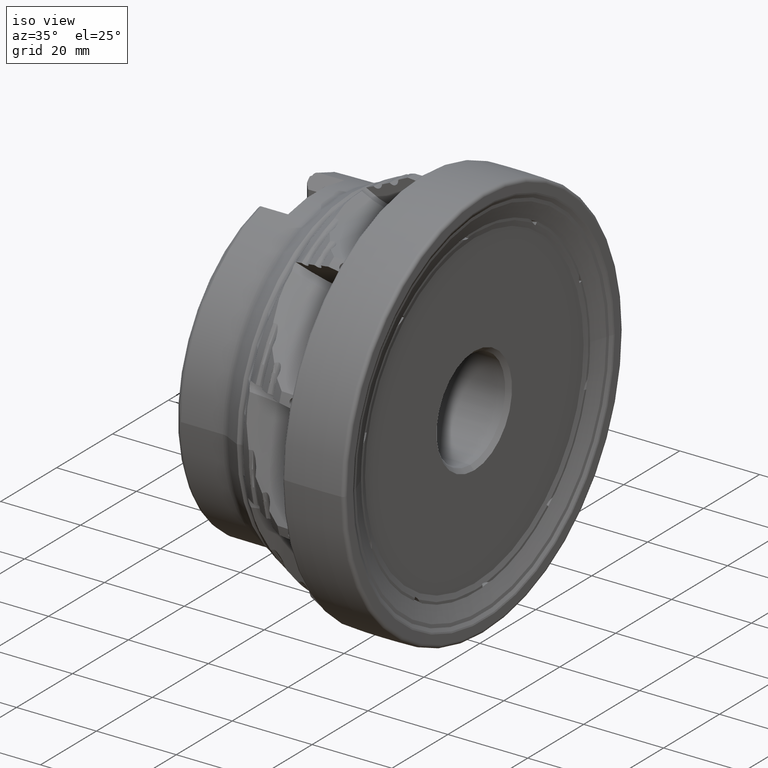
[diagram: clean part render]
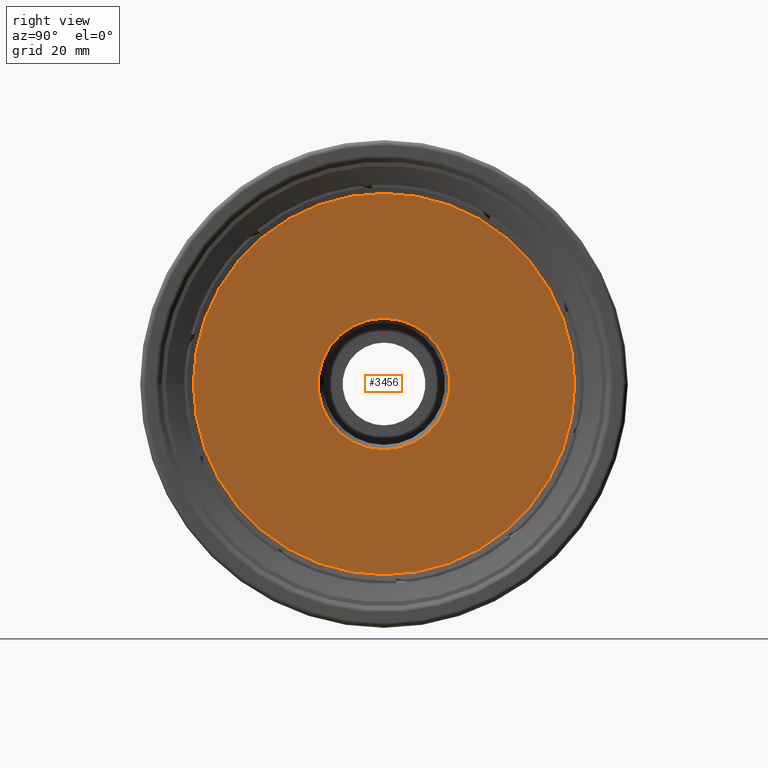
[diagram: tour spotlight — one face highlighted and labeled with its STEP entity id]
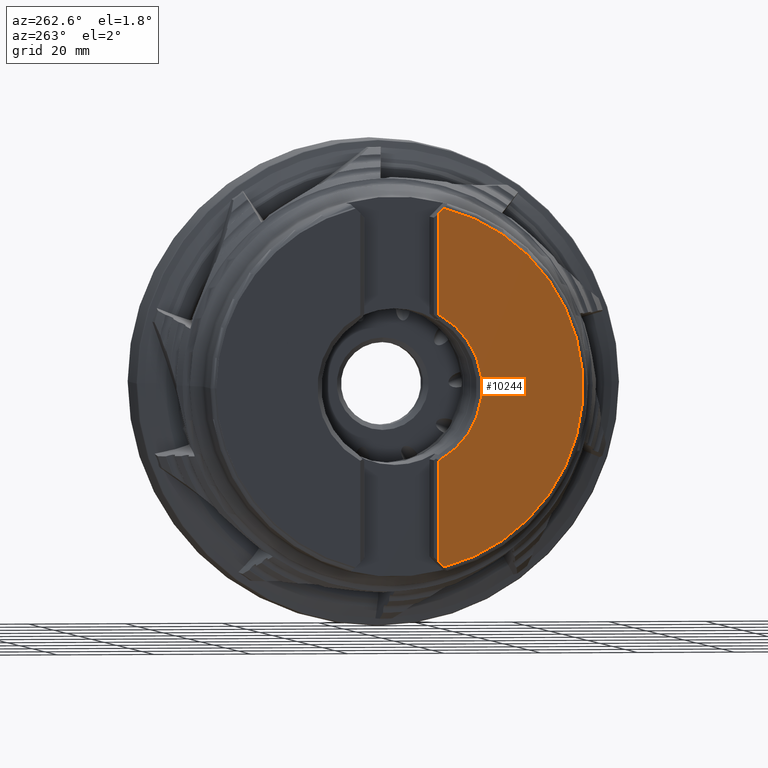
[diagram: tour spotlight — one face highlighted and labeled with its STEP entity id]
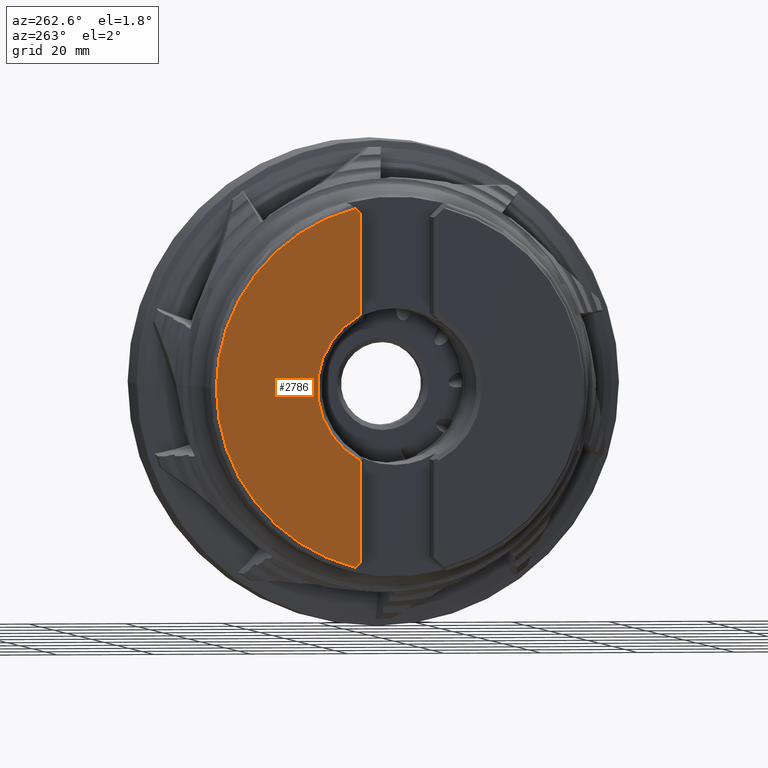
[diagram: tour spotlight — one face highlighted and labeled with its STEP entity id]
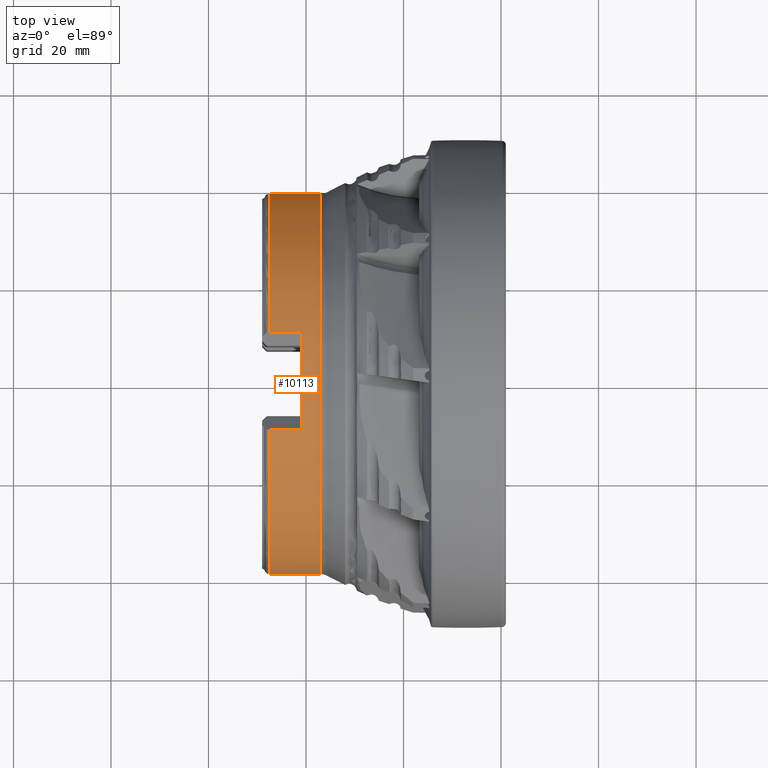
[diagram: tour spotlight — one face highlighted and labeled with its STEP entity id]
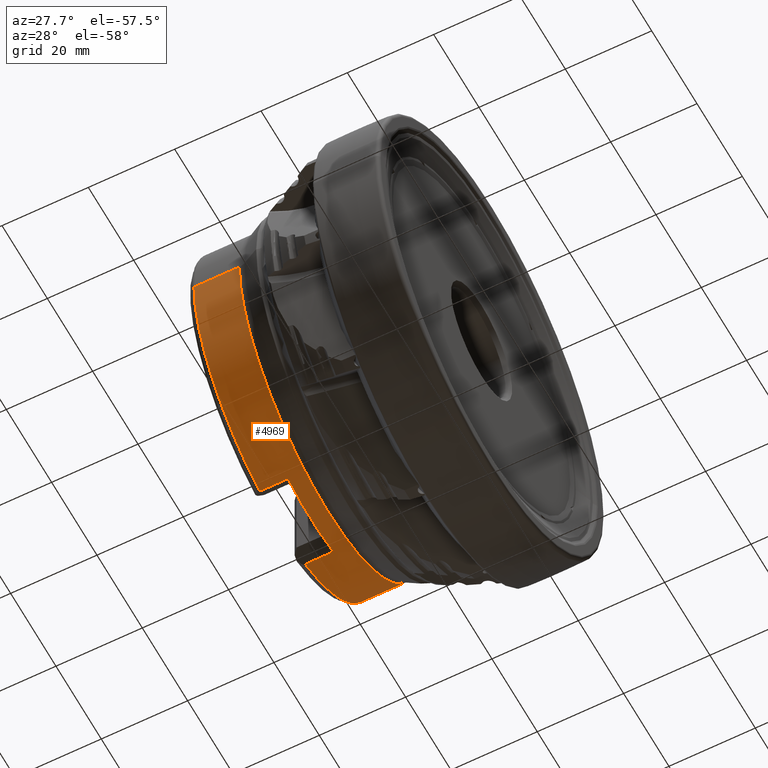
[diagram: tour spotlight — one face highlighted and labeled with its STEP entity id]
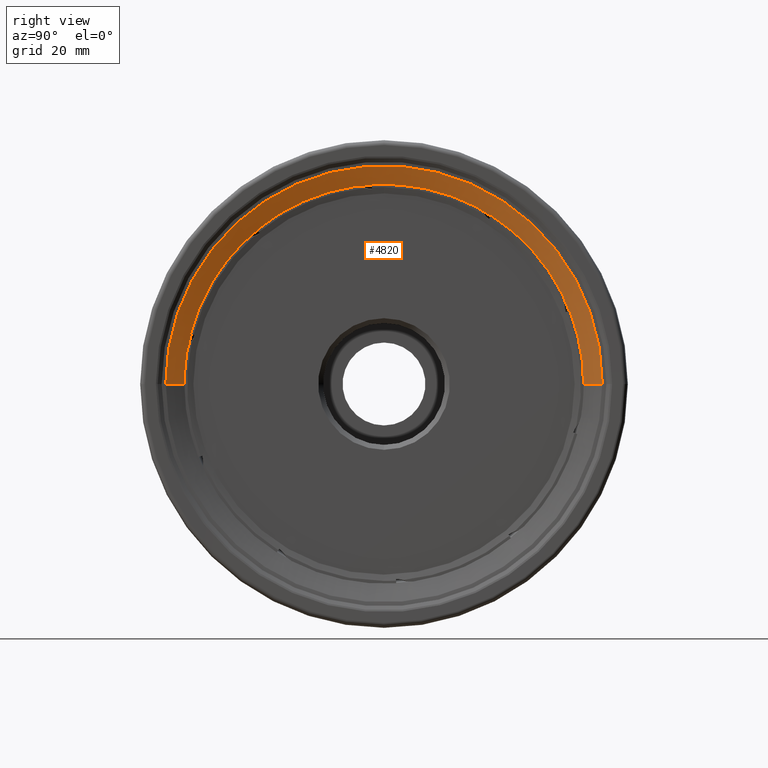
[diagram: tour spotlight — one face highlighted and labeled with its STEP entity id]
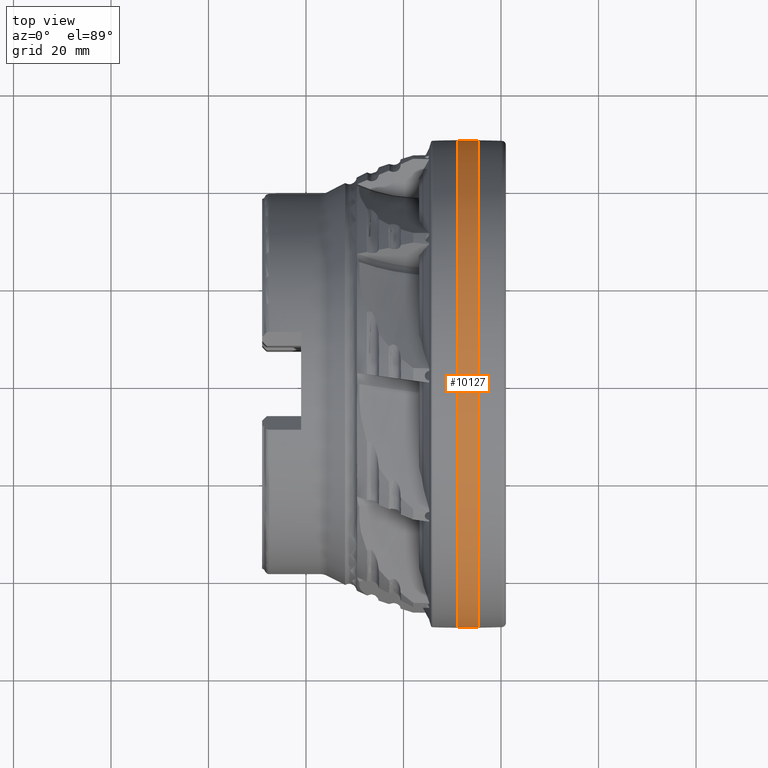
[diagram: tour spotlight — one face highlighted and labeled with its STEP entity id]
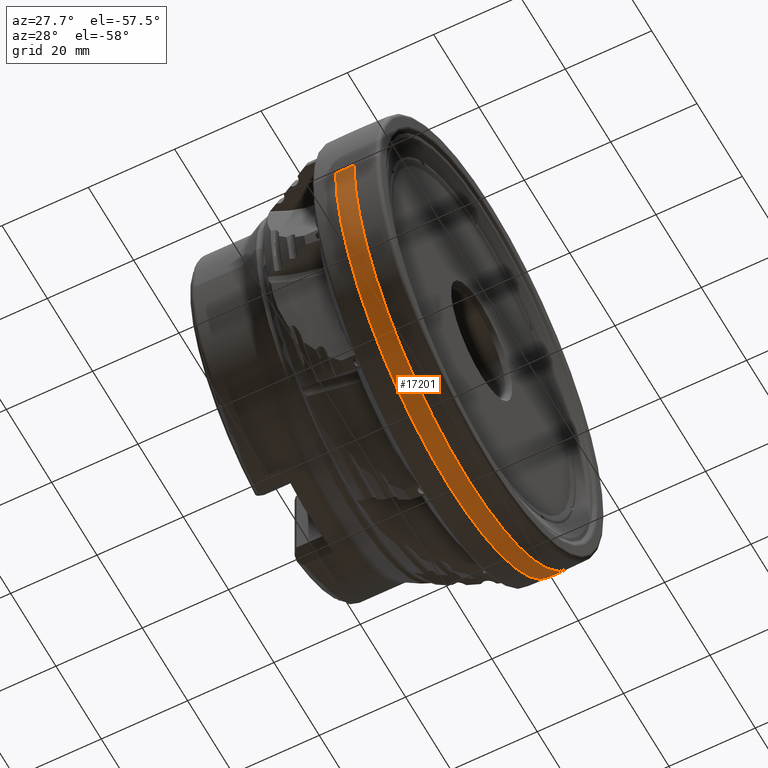
[diagram: tour spotlight — one face highlighted and labeled with its STEP entity id]
A machine part: a face-by-face anatomy tour. The part has 518 B-rep faces; the first image is the clean iso view, then the 8 largest visible faces are spotlighted one at a time (largest first), each with its STEP entity span.

Face 1 — right view, entity #3456. In plain terms, the highlighted planar face has unit normal (-1, 0, 0).
Definition (entity closure, byte-faithful):
#394 = CARTESIAN_POINT ( 'NONE',  ( -1.400000000000000799, 0.0000000000000000000, 0.0000000000000000000 ) ) ;
#1656 = CIRCLE ( 'NONE', #5580, 39.10000000000000142 ) ;
#1980 = ORIENTED_EDGE ( 'NONE', *, *, #22034, .T. ) ;
#2219 = FACE_OUTER_BOUND ( 'NONE', #8786, .T. ) ;
#2399 = CARTESIAN_POINT ( 'NONE',  ( -1.399999999999997025, 0.0000000000000000000, -13.50000000000000533 ) ) ;
#3207 = DIRECTION ( 'NONE',  ( -1.000000000000000000, 0.0000000000000000000, 0.0000000000000000000 ) ) ;
#3228 = AXIS2_PLACEMENT_3D ( 'NONE', #11441, #3207, #6234 ) ;
#3413 = CARTESIAN_POINT ( 'NONE',  ( -1.400000000000000799, 0.0000000000000000000, 0.0000000000000000000 ) ) ;
#3456 = ADVANCED_FACE ( 'NONE', ( #16144, #2219 ), #15908, .F. ) ;
#3493 = VERTEX_POINT ( 'NONE', #11658 ) ;
#4003 = VERTEX_POINT ( 'NONE', #2399 ) ;
#4024 = EDGE_CURVE ( 'Kante54', #18223, #4003, #18263, .T. ) ;
#5580 = AXIS2_PLACEMENT_3D ( 'NONE', #394, #17151, #17371 ) ;
#6175 = CARTESIAN_POINT ( 'NONE',  ( -1.399999999999997025, 1.653273178848927458E-15, 13.50000000000000533 ) ) ;
#6234 = DIRECTION ( 'NONE',  ( 0.0000000000000000000, 0.0000000000000000000, 1.000000000000000000 ) ) ;
#6599 = EDGE_LOOP ( 'NONE', ( #14141, #14251 ) ) ;
#6773 = DIRECTION ( 'NONE',  ( 0.0000000000000000000, 0.0000000000000000000, -1.000000000000000000 ) ) ;
#7210 = DIRECTION ( 'NONE',  ( 1.000000000000000000, -0.0000000000000000000, -0.0000000000000000000 ) ) ;
#8786 = EDGE_LOOP ( 'NONE', ( #21774, #1980 ) ) ;
#10448 = CARTESIAN_POINT ( 'NONE',  ( -1.400000000000000799, 4.867436843024822299E-15, 39.10000000000000142 ) ) ;
#11441 = CARTESIAN_POINT ( 'NONE',  ( -1.399999999999998801, 39.10000000000000142, 0.0000000000000000000 ) ) ;
#11658 = CARTESIAN_POINT ( 'NONE',  ( -1.400000000000000799, 0.0000000000000000000, -39.10000000000000142 ) ) ;
#11867 = DIRECTION ( 'NONE',  ( 1.000000000000000000, -0.0000000000000000000, -0.0000000000000000000 ) ) ;
#13424 = CIRCLE ( 'NONE', #15241, 13.50000000000000533 ) ;
#13508 = EDGE_CURVE ( 'Kante54', #4003, #18223, #13424, .T. ) ;
#13568 = DIRECTION ( 'NONE',  ( 0.0000000000000000000, 0.0000000000000000000, -1.000000000000000000 ) ) ;
#14141 = ORIENTED_EDGE ( 'NONE', *, *, #13508, .F. ) ;
#14251 = ORIENTED_EDGE ( 'NONE', *, *, #4024, .F. ) ;
#14854 = EDGE_CURVE ( 'NONE', #3493, #18504, #1656, .T. ) ;
#15241 = AXIS2_PLACEMENT_3D ( 'NONE', #21826, #16598, #13568 ) ;
#15908 = PLANE ( 'NONE',  #3228 ) ;
#16144 = FACE_BOUND ( 'NONE', #6599, .T. ) ;
#16598 = DIRECTION ( 'NONE',  ( 1.000000000000000000, -0.0000000000000000000, -0.0000000000000000000 ) ) ;
#17151 = DIRECTION ( 'NONE',  ( 1.000000000000000000, -0.0000000000000000000, -0.0000000000000000000 ) ) ;
#17371 = DIRECTION ( 'NONE',  ( 0.0000000000000000000, 0.0000000000000000000, -1.000000000000000000 ) ) ;
#17524 = AXIS2_PLACEMENT_3D ( 'NONE', #19157, #7210, #21288 ) ;
#18223 = VERTEX_POINT ( 'NONE', #6175 ) ;
#18263 = CIRCLE ( 'NONE', #17524, 13.50000000000000533 ) ;
#18504 = VERTEX_POINT ( 'NONE', #10448 ) ;
#19157 = CARTESIAN_POINT ( 'NONE',  ( -1.399999999999997025, 0.0000000000000000000, 0.0000000000000000000 ) ) ;
#19924 = CIRCLE ( 'NONE', #22077, 39.10000000000000142 ) ;
#21288 = DIRECTION ( 'NONE',  ( 0.0000000000000000000, 0.0000000000000000000, -1.000000000000000000 ) ) ;
#21774 = ORIENTED_EDGE ( 'NONE', *, *, #14854, .T. ) ;
#21826 = CARTESIAN_POINT ( 'NONE',  ( -1.399999999999997025, 0.0000000000000000000, 0.0000000000000000000 ) ) ;
#22034 = EDGE_CURVE ( 'NONE', #18504, #3493, #19924, .T. ) ;
#22077 = AXIS2_PLACEMENT_3D ( 'NONE', #3413, #11867, #6773 ) ;

Face 2 — auxiliary view, entity #10244. In plain terms, the highlighted planar face has unit normal (1, 0, -0).
Definition (entity closure, byte-faithful):
#192 = CARTESIAN_POINT ( 'NONE',  ( -48.99999999999999289, -45.00000000000000000, -51.16752213996278442 ) ) ;
#269 = CIRCLE ( 'NONE', #17905, 17.02500000000000213 ) ;
#336 = ORIENTED_EDGE ( 'NONE', *, *, #1440, .T. ) ;
#1061 = DIRECTION ( 'NONE',  ( 0.0000000000000000000, 0.0000000000000000000, -1.000000000000000000 ) ) ;
#1173 = EDGE_CURVE ( 'NONE', #6859, #20744, #19571, .T. ) ;
#1361 = VERTEX_POINT ( 'NONE', #13976 ) ;
#1440 = EDGE_CURVE ( 'NONE', #12008, #1361, #3015, .T. ) ;
#2127 = EDGE_LOOP ( 'NONE', ( #336, #9342, #8101, #9156, #18215, #19578 ) ) ;
#2188 = LINE ( 'NONE', #7118, #17159 ) ;
#2792 = CARTESIAN_POINT ( 'NONE',  ( -48.99999999999999289, -7.200000000000008171, -34.85319172440896551 ) ) ;
#3015 = CIRCLE ( 'NONE', #12710, 37.92228756555321212 ) ;
#3128 = AXIS2_PLACEMENT_3D ( 'NONE', #192, #20807, #8963 ) ;
#3723 = VECTOR ( 'NONE', #7610, 1000.000000000000000 ) ;
#4033 = VERTEX_POINT ( 'NONE', #5842 ) ;
#4198 = VERTEX_POINT ( 'NONE', #10242 ) ;
#5337 = CARTESIAN_POINT ( 'NONE',  ( -48.99999999999999289, -8.150000000000002132, 14.94751233483351704 ) ) ;
#5842 = CARTESIAN_POINT ( 'NONE',  ( -48.99999999999999289, -8.149999999999996803, -14.94751233483351882 ) ) ;
#6859 = VERTEX_POINT ( 'NONE', #10735 ) ;
#7118 = CARTESIAN_POINT ( 'NONE',  ( -48.99999999999999289, -7.200000000000000178, 34.85319172440896551 ) ) ;
#7610 = DIRECTION ( 'NONE',  ( -9.676441861234185210E-49, 4.355219482277781794E-17, -1.000000000000000000 ) ) ;
#8101 = ORIENTED_EDGE ( 'NONE', *, *, #1173, .T. ) ;
#8628 = DIRECTION ( 'NONE',  ( 0.0000000000000000000, -4.790741430505560405E-16, -1.000000000000000000 ) ) ;
#8889 = DIRECTION ( 'NONE',  ( 0.0000000000000000000, 0.0000000000000000000, -1.000000000000000000 ) ) ;
#8963 = DIRECTION ( 'NONE',  ( -0.0000000000000000000, 0.0000000000000000000, -1.000000000000000000 ) ) ;
#9013 = EDGE_CURVE ( 'NONE', #12008, #4198, #14804, .T. ) ;
#9156 = ORIENTED_EDGE ( 'NONE', *, *, #10828, .F. ) ;
#9342 = ORIENTED_EDGE ( 'NONE', *, *, #9642, .F. ) ;
#9642 = EDGE_CURVE ( 'NONE', #6859, #1361, #2188, .T. ) ;
#9657 = DIRECTION ( 'NONE',  ( 0.0000000000000000000, 0.7071067811865513475, 0.7071067811865436870 ) ) ;
#10242 = CARTESIAN_POINT ( 'NONE',  ( -48.99999999999999289, -8.150000000000005684, -35.80319172440894704 ) ) ;
#10244 = ADVANCED_FACE ( 'NONE', ( #14359 ), #10434, .F. ) ;
#10330 = CARTESIAN_POINT ( 'NONE',  ( -48.99999999999999289, -8.150000000000005684, -34.85319172440896551 ) ) ;
#10434 = PLANE ( 'NONE',  #3128 ) ;
#10735 = CARTESIAN_POINT ( 'NONE',  ( -48.99999999999999289, -8.150000000000003908, 35.80319172440895414 ) ) ;
#10828 = EDGE_CURVE ( 'NONE', #4033, #20744, #269, .T. ) ;
#11015 = CARTESIAN_POINT ( 'NONE',  ( -48.99999999999999289, -8.150000000000003908, 34.85319172440896551 ) ) ;
#12008 = VERTEX_POINT ( 'NONE', #13649 ) ;
#12710 = AXIS2_PLACEMENT_3D ( 'NONE', #14198, #19737, #1061 ) ;
#13649 = CARTESIAN_POINT ( 'NONE',  ( -48.99999999999999289, -9.148938820703916619, -36.80213054511285975 ) ) ;
#13976 = CARTESIAN_POINT ( 'NONE',  ( -48.99999999999999289, -9.148938820703911290, 36.80213054511285264 ) ) ;
#14198 = CARTESIAN_POINT ( 'NONE',  ( -48.99999999999999289, -6.938893903907228378E-15, 0.0000000000000000000 ) ) ;
#14359 = FACE_OUTER_BOUND ( 'NONE', #2127, .T. ) ;
#14804 = LINE ( 'NONE', #2792, #19684 ) ;
#16628 = VECTOR ( 'NONE', #8628, 1000.000000000000000 ) ;
#17159 = VECTOR ( 'NONE', #19070, 1000.000000000000000 ) ;
#17638 = LINE ( 'NONE', #10330, #16628 ) ;
#17661 = CARTESIAN_POINT ( 'NONE',  ( -48.99999999999999289, 0.0000000000000000000, 0.0000000000000000000 ) ) ;
#17781 = DIRECTION ( 'NONE',  ( -1.000000000000000000, -0.0000000000000000000, 0.0000000000000000000 ) ) ;
#17905 = AXIS2_PLACEMENT_3D ( 'NONE', #17661, #17781, #8889 ) ;
#18215 = ORIENTED_EDGE ( 'NONE', *, *, #21870, .T. ) ;
#19070 = DIRECTION ( 'NONE',  ( 0.0000000000000000000, -0.7071067811865513475, 0.7071067811865436870 ) ) ;
#19571 = LINE ( 'NONE', #11015, #3723 ) ;
#19578 = ORIENTED_EDGE ( 'NONE', *, *, #9013, .F. ) ;
#19684 = VECTOR ( 'NONE', #9657, 1000.000000000000000 ) ;
#19737 = DIRECTION ( 'NONE',  ( -1.000000000000000000, -0.0000000000000000000, 0.0000000000000000000 ) ) ;
#20744 = VERTEX_POINT ( 'NONE', #5337 ) ;
#20807 = DIRECTION ( 'NONE',  ( 1.000000000000000000, 0.0000000000000000000, -0.0000000000000000000 ) ) ;
#21870 = EDGE_CURVE ( 'NONE', #4033, #4198, #17638, .T. ) ;

Face 3 — auxiliary view, entity #2786. In plain terms, the highlighted planar face has unit normal (1, 0, -0).
Definition (entity closure, byte-faithful):
#277 = PLANE ( 'NONE',  #11735 ) ;
#587 = VERTEX_POINT ( 'NONE', #3065 ) ;
#708 = EDGE_LOOP ( 'NONE', ( #10038, #20777, #16821, #20495, #20175, #21251, #13774 ) ) ;
#1239 = CIRCLE ( 'NONE', #10943, 37.92228756555321212 ) ;
#2364 = LINE ( 'NONE', #9203, #3878 ) ;
#2729 = AXIS2_PLACEMENT_3D ( 'NONE', #15987, #17461, #21070 ) ;
#2786 = ADVANCED_FACE ( 'NONE', ( #6676 ), #277, .F. ) ;
#2915 = VERTEX_POINT ( 'NONE', #12946 ) ;
#2959 = VERTEX_POINT ( 'NONE', #6854 ) ;
#3009 = CARTESIAN_POINT ( 'NONE',  ( -48.99999999999999289, 8.150000000000046541, 15.04787092496624012 ) ) ;
#3065 = CARTESIAN_POINT ( 'NONE',  ( -48.99999999999999289, 9.148938818949400087, 36.80213054556050878 ) ) ;
#3324 = DIRECTION ( 'NONE',  ( 0.0000000000000000000, -2.189718981695497263E-16, 1.000000000000000000 ) ) ;
#3395 = CARTESIAN_POINT ( 'NONE',  ( -48.99999999999999289, 8.150000000000046541, 14.94751233483349218 ) ) ;
#3870 = VERTEX_POINT ( 'NONE', #3395 ) ;
#3878 = VECTOR ( 'NONE', #9332, 999.9999999999998863 ) ;
#4594 = DIRECTION ( 'NONE',  ( -1.000000000000000000, -0.0000000000000000000, 0.0000000000000000000 ) ) ;
#5007 = LINE ( 'NONE', #18743, #8661 ) ;
#5232 = DIRECTION ( 'NONE',  ( 1.548230697797463313E-47, 6.569156945086491295E-16, 1.000000000000000000 ) ) ;
#6676 = FACE_OUTER_BOUND ( 'NONE', #708, .T. ) ;
#6854 = CARTESIAN_POINT ( 'NONE',  ( -48.99999999999999289, 9.148938818940189677, -36.80213054555131436 ) ) ;
#8299 = CARTESIAN_POINT ( 'NONE',  ( -48.99999999999999289, 0.0000000000000000000, 0.0000000000000000000 ) ) ;
#8411 = DIRECTION ( 'NONE',  ( 0.0000000000000000000, -8.881784197001250351E-16, -1.000000000000000000 ) ) ;
#8576 = CARTESIAN_POINT ( 'NONE',  ( -48.99999999999999289, 11.34680827415612292, 39.00000000000000711 ) ) ;
#8661 = VECTOR ( 'NONE', #5232, 1000.000000000000000 ) ;
#9203 = CARTESIAN_POINT ( 'NONE',  ( -48.99999999999999289, 11.34680827415611226, -39.00000000000000711 ) ) ;
#9332 = DIRECTION ( 'NONE',  ( 0.0000000000000000000, 0.7071067813099647381, -0.7071067810631304074 ) ) ;
#9444 = CARTESIAN_POINT ( 'NONE',  ( -48.99999999999999289, -6.938893903907228378E-15, 0.0000000000000000000 ) ) ;
#9651 = VECTOR ( 'NONE', #3324, 1000.000000000000000 ) ;
#10038 = ORIENTED_EDGE ( 'NONE', *, *, #17907, .T. ) ;
#10169 = DIRECTION ( 'NONE',  ( -0.0000000000000000000, 0.0000000000000000000, -1.000000000000000000 ) ) ;
#10273 = DIRECTION ( 'NONE',  ( 0.0000000000000000000, -0.7071067813099648491, -0.7071067810631301853 ) ) ;
#10943 = AXIS2_PLACEMENT_3D ( 'NONE', #9444, #21500, #16503 ) ;
#11735 = AXIS2_PLACEMENT_3D ( 'NONE', #17252, #13735, #10169 ) ;
#12946 = CARTESIAN_POINT ( 'NONE',  ( -48.99999999999999289, 8.150000000000032330, -35.80319172695985941 ) ) ;
#13337 = EDGE_CURVE ( 'NONE', #587, #17763, #1239, .T. ) ;
#13735 = DIRECTION ( 'NONE',  ( 1.000000000000000000, 0.0000000000000000000, -0.0000000000000000000 ) ) ;
#13774 = ORIENTED_EDGE ( 'NONE', *, *, #16497, .F. ) ;
#13958 = LINE ( 'NONE', #8576, #19251 ) ;
#14208 = EDGE_CURVE ( 'NONE', #587, #15487, #13958, .T. ) ;
#14319 = EDGE_CURVE ( 'NONE', #17763, #2959, #16711, .T. ) ;
#14488 = CIRCLE ( 'NONE', #20247, 17.02500000000000213 ) ;
#15487 = VERTEX_POINT ( 'NONE', #15920 ) ;
#15920 = CARTESIAN_POINT ( 'NONE',  ( -48.99999999999999289, 8.150000000000042988, 35.80319172695985941 ) ) ;
#15987 = CARTESIAN_POINT ( 'NONE',  ( -48.99999999999999289, -6.938893903907228378E-15, 0.0000000000000000000 ) ) ;
#16497 = EDGE_CURVE ( 'NONE', #2915, #2959, #2364, .T. ) ;
#16503 = DIRECTION ( 'NONE',  ( 0.0000000000000000000, 0.0000000000000000000, -1.000000000000000000 ) ) ;
#16640 = EDGE_CURVE ( 'NONE', #3870, #15487, #18753, .T. ) ;
#16711 = CIRCLE ( 'NONE', #2729, 37.92228756555321212 ) ;
#16821 = ORIENTED_EDGE ( 'NONE', *, *, #16640, .T. ) ;
#17252 = CARTESIAN_POINT ( 'NONE',  ( -48.99999999999999289, -45.00000000000000000, -51.16752213996278442 ) ) ;
#17461 = DIRECTION ( 'NONE',  ( -1.000000000000000000, -0.0000000000000000000, 0.0000000000000000000 ) ) ;
#17763 = VERTEX_POINT ( 'NONE', #21693 ) ;
#17907 = EDGE_CURVE ( 'NONE', #2915, #19906, #5007, .T. ) ;
#18743 = CARTESIAN_POINT ( 'NONE',  ( -48.99999999999999289, 8.150000000000046541, -15.04787092496624012 ) ) ;
#18753 = LINE ( 'NONE', #3009, #9651 ) ;
#19251 = VECTOR ( 'NONE', #10273, 1000.000000000000000 ) ;
#19427 = EDGE_CURVE ( 'NONE', #3870, #19906, #14488, .T. ) ;
#19906 = VERTEX_POINT ( 'NONE', #21060 ) ;
#20175 = ORIENTED_EDGE ( 'NONE', *, *, #13337, .T. ) ;
#20247 = AXIS2_PLACEMENT_3D ( 'NONE', #8299, #4594, #8411 ) ;
#20495 = ORIENTED_EDGE ( 'NONE', *, *, #14208, .F. ) ;
#20777 = ORIENTED_EDGE ( 'NONE', *, *, #19427, .F. ) ;
#21060 = CARTESIAN_POINT ( 'NONE',  ( -48.99999999999999289, 8.150000000000046541, -14.94751233483348862 ) ) ;
#21070 = DIRECTION ( 'NONE',  ( 0.0000000000000000000, 1.776356839400250070E-15, -1.000000000000000000 ) ) ;
#21251 = ORIENTED_EDGE ( 'NONE', *, *, #14319, .T. ) ;
#21500 = DIRECTION ( 'NONE',  ( -1.000000000000000000, -0.0000000000000000000, 0.0000000000000000000 ) ) ;
#21693 = CARTESIAN_POINT ( 'NONE',  ( -48.99999999999999289, 37.92228756555320501, 0.0000000000000000000 ) ) ;

Face 4 — top view, entity #10113. In plain terms, the highlighted cylindrical surface (partial cylindrical patch) has radius 39 mm, axis along (1, 0, -0).
Definition (entity closure, byte-faithful):
#74 = CARTESIAN_POINT ( 'NONE',  ( 0.0000000000000000000, 0.0000000000000000000, 0.0000000000000000000 ) ) ;
#202 = CARTESIAN_POINT ( 'NONE',  ( -47.55000000000000426, 10.03394157505487883, 37.68713330135705775 ) ) ;
#625 = CIRCLE ( 'NONE', #17883, 39.00000000003763034 ) ;
#1144 = CARTESIAN_POINT ( 'NONE',  ( 4.776122516679286403E-15, -39.00000000003763034, 4.776122516679286403E-15 ) ) ;
#1190 = DIRECTION ( 'NONE',  ( -1.000000000000000000, -0.0000000000000000000, 0.0000000000000000000 ) ) ;
#1228 = VECTOR ( 'NONE', #21745, 1000.000000000000000 ) ;
#1307 = CIRCLE ( 'NONE', #16359, 39.00000000007526069 ) ;
#1452 = ORIENTED_EDGE ( 'NONE', *, *, #1487, .F. ) ;
#1487 = EDGE_CURVE ( 'NONE', #11971, #12409, #15566, .T. ) ;
#1556 = DIRECTION ( 'NONE',  ( -1.224646799147353454E-16, 1.000000000000000000, 0.0000000000000000000 ) ) ;
#1601 = EDGE_CURVE ( 'NONE', #14709, #11971, #20064, .T. ) ;
#1902 = ORIENTED_EDGE ( 'NONE', *, *, #10367, .F. ) ;
#2631 = CARTESIAN_POINT ( 'NONE',  ( -37.04999999999999005, -4.537316390840942288E-15, 0.0000000000000000000 ) ) ;
#2889 = LINE ( 'NONE', #9310, #22182 ) ;
#3751 = DIRECTION ( 'NONE',  ( 1.000000000000000000, 1.224646799147353207E-16, -0.0000000000000000000 ) ) ;
#3828 = VECTOR ( 'NONE', #9748, 1000.000000000000000 ) ;
#4323 = DIRECTION ( 'NONE',  ( 1.000000000000000000, 1.224646799147353207E-16, -0.0000000000000000000 ) ) ;
#4646 = CARTESIAN_POINT ( 'NONE',  ( -47.55000000000000426, -5.823195529945664499E-15, 0.0000000000000000000 ) ) ;
#5040 = ORIENTED_EDGE ( 'NONE', *, *, #10346, .F. ) ;
#5094 = CARTESIAN_POINT ( 'NONE',  ( -47.55000000000001137, 39.00000000007525358, 0.0000000000000000000 ) ) ;
#5127 = DIRECTION ( 'NONE',  ( 1.000000000000000000, 1.224646799147353207E-16, -0.0000000000000000000 ) ) ;
#5862 = AXIS2_PLACEMENT_3D ( 'NONE', #2631, #14312, #21427 ) ;
#6651 = CARTESIAN_POINT ( 'NONE',  ( -4.776122516679286403E-15, 39.00000000003763034, 0.0000000000000000000 ) ) ;
#6941 = CIRCLE ( 'NONE', #14140, 39.00000000007526069 ) ;
#8042 = DIRECTION ( 'NONE',  ( 0.0000000000000000000, 2.664535259100375697E-15, -1.000000000000000000 ) ) ;
#8090 = VERTEX_POINT ( 'NONE', #11390 ) ;
#8486 = CARTESIAN_POINT ( 'NONE',  ( -37.04999999999999716, 38.99999999999999289, 0.0000000000000000000 ) ) ;
#8584 = EDGE_CURVE ( 'NONE', #10106, #8827, #20534, .T. ) ;
#8827 = VERTEX_POINT ( 'NONE', #202 ) ;
#9136 = VECTOR ( 'NONE', #9722, 1000.000000000000000 ) ;
#9310 = CARTESIAN_POINT ( 'NONE',  ( 2.922073080026869793E-15, -10.03394157651929319, 37.68713330092821678 ) ) ;
#9722 = DIRECTION ( 'NONE',  ( 1.000000000000000000, 1.224646799147353207E-16, -0.0000000000000000000 ) ) ;
#9748 = DIRECTION ( 'NONE',  ( -1.000000000000000000, -1.224646799147353207E-16, 0.0000000000000000000 ) ) ;
#10106 = VERTEX_POINT ( 'NONE', #21940 ) ;
#10113 = ADVANCED_FACE ( 'NONE', ( #19003 ), #17064, .T. ) ;
#10233 = ORIENTED_EDGE ( 'NONE', *, *, #11520, .T. ) ;
#10346 = EDGE_CURVE ( 'NONE', #8090, #19928, #2889, .T. ) ;
#10367 = EDGE_CURVE ( 'NONE', #19928, #10106, #625, .T. ) ;
#10369 = CARTESIAN_POINT ( 'NONE',  ( -40.99999999999998579, -10.03394157651928786, 37.68713330092821678 ) ) ;
#11066 = LINE ( 'NONE', #1144, #1228 ) ;
#11390 = CARTESIAN_POINT ( 'NONE',  ( -47.55000000000000426, -10.03394157655003838, 37.68713330095896907 ) ) ;
#11401 = CARTESIAN_POINT ( 'NONE',  ( -47.54999999999999716, -39.00000000007526779, 4.776122516683893351E-15 ) ) ;
#11520 = EDGE_CURVE ( 'NONE', #8090, #21102, #6941, .T. ) ;
#11971 = VERTEX_POINT ( 'NONE', #8486 ) ;
#12134 = ORIENTED_EDGE ( 'NONE', *, *, #8584, .F. ) ;
#12409 = VERTEX_POINT ( 'NONE', #17683 ) ;
#12431 = ORIENTED_EDGE ( 'NONE', *, *, #1601, .F. ) ;
#13385 = ORIENTED_EDGE ( 'NONE', *, *, #21135, .T. ) ;
#14140 = AXIS2_PLACEMENT_3D ( 'NONE', #4646, #4323, #21566 ) ;
#14206 = CARTESIAN_POINT ( 'NONE',  ( -47.55000000000000426, -5.823195529945664499E-15, 0.0000000000000000000 ) ) ;
#14312 = DIRECTION ( 'NONE',  ( 1.000000000000000000, 1.224646799147353207E-16, -0.0000000000000000000 ) ) ;
#14594 = EDGE_LOOP ( 'NONE', ( #10233, #13385, #1452, #12431, #20430, #12134, #1902, #5040 ) ) ;
#14709 = VERTEX_POINT ( 'NONE', #5094 ) ;
#14775 = EDGE_CURVE ( 'NONE', #14709, #8827, #1307, .T. ) ;
#15566 = CIRCLE ( 'NONE', #5862, 39.00000000000000000 ) ;
#15671 = AXIS2_PLACEMENT_3D ( 'NONE', #74, #5127, #1556 ) ;
#16359 = AXIS2_PLACEMENT_3D ( 'NONE', #14206, #3751, #17260 ) ;
#17064 = CYLINDRICAL_SURFACE ( 'NONE', #15671, 39.00000000003763034 ) ;
#17260 = DIRECTION ( 'NONE',  ( -1.779203565100984104E-16, 1.000000000000000000, 0.0000000000000000000 ) ) ;
#17683 = CARTESIAN_POINT ( 'NONE',  ( -37.04999999999998295, -39.00000000000000711, 4.796202013336622635E-15 ) ) ;
#17883 = AXIS2_PLACEMENT_3D ( 'NONE', #17980, #1190, #8042 ) ;
#17980 = CARTESIAN_POINT ( 'NONE',  ( -40.99999999999998579, -5.021051876504146596E-15, 0.0000000000000000000 ) ) ;
#18845 = CARTESIAN_POINT ( 'NONE',  ( -2.922073080174159196E-15, 10.03394157502412298, 37.68713330132629835 ) ) ;
#19003 = FACE_OUTER_BOUND ( 'NONE', #14594, .T. ) ;
#19874 = DIRECTION ( 'NONE',  ( 1.000000000000000000, 1.224646799147353207E-16, -0.0000000000000000000 ) ) ;
#19928 = VERTEX_POINT ( 'NONE', #10369 ) ;
#20064 = LINE ( 'NONE', #6651, #9136 ) ;
#20430 = ORIENTED_EDGE ( 'NONE', *, *, #14775, .T. ) ;
#20534 = LINE ( 'NONE', #18845, #3828 ) ;
#21102 = VERTEX_POINT ( 'NONE', #11401 ) ;
#21135 = EDGE_CURVE ( 'NONE', #21102, #12409, #11066, .T. ) ;
#21427 = DIRECTION ( 'NONE',  ( -1.779203565104417621E-16, 1.000000000000000000, 0.0000000000000000000 ) ) ;
#21566 = DIRECTION ( 'NONE',  ( -1.779203565100984104E-16, 1.000000000000000000, 0.0000000000000000000 ) ) ;
#21745 = DIRECTION ( 'NONE',  ( 1.000000000000000000, 1.224646799147353207E-16, -0.0000000000000000000 ) ) ;
#21940 = CARTESIAN_POINT ( 'NONE',  ( -40.99999999999998579, 10.03394157502411943, 37.68713330132629125 ) ) ;
#22182 = VECTOR ( 'NONE', #19874, 1000.000000000000000 ) ;

Face 5 — auxiliary view, entity #4969. In plain terms, the highlighted cylindrical surface (partial cylindrical patch) has radius 39 mm, axis along (1, 0, -0).
Definition (entity closure, byte-faithful):
#251 = ORIENTED_EDGE ( 'NONE', *, *, #1601, .T. ) ;
#1144 = CARTESIAN_POINT ( 'NONE',  ( 4.776122516679286403E-15, -39.00000000003763034, 4.776122516679286403E-15 ) ) ;
#1228 = VECTOR ( 'NONE', #21745, 1000.000000000000000 ) ;
#1601 = EDGE_CURVE ( 'NONE', #14709, #11971, #20064, .T. ) ;
#2787 = CIRCLE ( 'NONE', #19323, 39.00000000003763034 ) ;
#2880 = DIRECTION ( 'NONE',  ( -1.779203565100984104E-16, 1.000000000000000000, 0.0000000000000000000 ) ) ;
#2983 = CARTESIAN_POINT ( 'NONE',  ( -47.55000000000000426, -5.823195529945664499E-15, 0.0000000000000000000 ) ) ;
#3439 = DIRECTION ( 'NONE',  ( -1.000000000000000000, -1.224646799147353207E-16, 0.0000000000000000000 ) ) ;
#4828 = DIRECTION ( 'NONE',  ( 1.000000000000000000, 1.224646799147353207E-16, -0.0000000000000000000 ) ) ;
#4960 = CARTESIAN_POINT ( 'NONE',  ( -40.99999999999998579, -5.021051876504146596E-15, 0.0000000000000000000 ) ) ;
#4969 = ADVANCED_FACE ( 'NONE', ( #7278 ), #8632, .T. ) ;
#5094 = CARTESIAN_POINT ( 'NONE',  ( -47.55000000000001137, 39.00000000007525358, 0.0000000000000000000 ) ) ;
#5110 = VERTEX_POINT ( 'NONE', #17642 ) ;
#5193 = EDGE_CURVE ( 'NONE', #18876, #14709, #13033, .T. ) ;
#5262 = CARTESIAN_POINT ( 'NONE',  ( 0.0000000000000000000, 0.0000000000000000000, 0.0000000000000000000 ) ) ;
#5330 = EDGE_CURVE ( 'NONE', #17208, #5110, #18863, .T. ) ;
#5860 = VECTOR ( 'NONE', #3439, 1000.000000000000000 ) ;
#6145 = DIRECTION ( 'NONE',  ( 1.000000000000000000, 1.224646799147353207E-16, -0.0000000000000000000 ) ) ;
#6519 = CARTESIAN_POINT ( 'NONE',  ( -40.99999999999998579, -10.03394157651930030, -37.68713330092821678 ) ) ;
#6621 = EDGE_LOOP ( 'NONE', ( #10639, #16745, #9317, #16366, #13311, #17006, #251, #20483 ) ) ;
#6651 = CARTESIAN_POINT ( 'NONE',  ( -4.776122516679286403E-15, 39.00000000003763034, 0.0000000000000000000 ) ) ;
#7042 = CIRCLE ( 'NONE', #9954, 39.00000000000000000 ) ;
#7147 = CARTESIAN_POINT ( 'NONE',  ( 2.922073080026869793E-15, -10.03394157651929852, -37.68713330092821678 ) ) ;
#7278 = FACE_OUTER_BOUND ( 'NONE', #6621, .T. ) ;
#7540 = EDGE_CURVE ( 'NONE', #21102, #5110, #20331, .T. ) ;
#8054 = DIRECTION ( 'NONE',  ( -1.779203565100984104E-16, 1.000000000000000000, 0.0000000000000000000 ) ) ;
#8077 = DIRECTION ( 'NONE',  ( 1.000000000000000000, 1.224646799147353207E-16, -0.0000000000000000000 ) ) ;
#8129 = EDGE_CURVE ( 'NONE', #12409, #11971, #7042, .T. ) ;
#8486 = CARTESIAN_POINT ( 'NONE',  ( -37.04999999999999716, 38.99999999999999289, 0.0000000000000000000 ) ) ;
#8632 = CYLINDRICAL_SURFACE ( 'NONE', #13967, 39.00000000003763034 ) ;
#9136 = VECTOR ( 'NONE', #9722, 1000.000000000000000 ) ;
#9317 = ORIENTED_EDGE ( 'NONE', *, *, #5330, .F. ) ;
#9722 = DIRECTION ( 'NONE',  ( 1.000000000000000000, 1.224646799147353207E-16, -0.0000000000000000000 ) ) ;
#9762 = CARTESIAN_POINT ( 'NONE',  ( -47.55000000000000426, -5.823195529945664499E-15, 0.0000000000000000000 ) ) ;
#9954 = AXIS2_PLACEMENT_3D ( 'NONE', #12931, #4828, #11272 ) ;
#10183 = CARTESIAN_POINT ( 'NONE',  ( -2.922073080174158408E-15, 10.03394157502411055, -37.68713330132629835 ) ) ;
#10639 = ORIENTED_EDGE ( 'NONE', *, *, #21135, .F. ) ;
#11066 = LINE ( 'NONE', #1144, #1228 ) ;
#11272 = DIRECTION ( 'NONE',  ( -1.779203565104417621E-16, 1.000000000000000000, 0.0000000000000000000 ) ) ;
#11401 = CARTESIAN_POINT ( 'NONE',  ( -47.54999999999999716, -39.00000000007526779, 4.776122516683893351E-15 ) ) ;
#11898 = EDGE_CURVE ( 'NONE', #18876, #16434, #19802, .T. ) ;
#11971 = VERTEX_POINT ( 'NONE', #8486 ) ;
#12222 = DIRECTION ( 'NONE',  ( -1.224646799147353454E-16, 1.000000000000000000, 0.0000000000000000000 ) ) ;
#12409 = VERTEX_POINT ( 'NONE', #17683 ) ;
#12668 = CARTESIAN_POINT ( 'NONE',  ( -40.99999999999998579, 10.03394157502411765, -37.68713330132629835 ) ) ;
#12931 = CARTESIAN_POINT ( 'NONE',  ( -37.04999999999999005, -4.537316390840942288E-15, 0.0000000000000000000 ) ) ;
#13033 = CIRCLE ( 'NONE', #21700, 39.00000000007526069 ) ;
#13311 = ORIENTED_EDGE ( 'NONE', *, *, #11898, .F. ) ;
#13913 = DIRECTION ( 'NONE',  ( 1.000000000000000000, 1.224646799147353207E-16, -0.0000000000000000000 ) ) ;
#13967 = AXIS2_PLACEMENT_3D ( 'NONE', #5262, #13913, #12222 ) ;
#14709 = VERTEX_POINT ( 'NONE', #5094 ) ;
#15239 = VECTOR ( 'NONE', #8077, 1000.000000000000000 ) ;
#15311 = DIRECTION ( 'NONE',  ( 1.000000000000000000, 0.0000000000000000000, -0.0000000000000000000 ) ) ;
#15841 = EDGE_CURVE ( 'NONE', #17208, #16434, #2787, .T. ) ;
#16366 = ORIENTED_EDGE ( 'NONE', *, *, #15841, .T. ) ;
#16434 = VERTEX_POINT ( 'NONE', #12668 ) ;
#16745 = ORIENTED_EDGE ( 'NONE', *, *, #7540, .T. ) ;
#17006 = ORIENTED_EDGE ( 'NONE', *, *, #5193, .T. ) ;
#17208 = VERTEX_POINT ( 'NONE', #6519 ) ;
#17642 = CARTESIAN_POINT ( 'NONE',  ( -47.55000000000000426, -10.03394157655004548, -37.68713330095896907 ) ) ;
#17683 = CARTESIAN_POINT ( 'NONE',  ( -37.04999999999998295, -39.00000000000000711, 4.796202013336622635E-15 ) ) ;
#18705 = DIRECTION ( 'NONE',  ( 0.0000000000000000000, 0.0000000000000000000, 1.000000000000000000 ) ) ;
#18863 = LINE ( 'NONE', #7147, #5860 ) ;
#18876 = VERTEX_POINT ( 'NONE', #20084 ) ;
#18904 = AXIS2_PLACEMENT_3D ( 'NONE', #2983, #22003, #2880 ) ;
#19323 = AXIS2_PLACEMENT_3D ( 'NONE', #4960, #15311, #18705 ) ;
#19802 = LINE ( 'NONE', #10183, #15239 ) ;
#20064 = LINE ( 'NONE', #6651, #9136 ) ;
#20084 = CARTESIAN_POINT ( 'NONE',  ( -47.55000000000000426, 10.03394157505486817, -37.68713330135705775 ) ) ;
#20331 = CIRCLE ( 'NONE', #18904, 39.00000000007526069 ) ;
#20483 = ORIENTED_EDGE ( 'NONE', *, *, #8129, .F. ) ;
#21102 = VERTEX_POINT ( 'NONE', #11401 ) ;
#21135 = EDGE_CURVE ( 'NONE', #21102, #12409, #11066, .T. ) ;
#21700 = AXIS2_PLACEMENT_3D ( 'NONE', #9762, #6145, #8054 ) ;
#21745 = DIRECTION ( 'NONE',  ( 1.000000000000000000, 1.224646799147353207E-16, -0.0000000000000000000 ) ) ;
#22003 = DIRECTION ( 'NONE',  ( 1.000000000000000000, 1.224646799147353207E-16, -0.0000000000000000000 ) ) ;

Face 6 — right view, entity #4820. In plain terms, the highlighted conical surface has half-angle 69.684 deg.
Definition (entity closure, byte-faithful):
#91 = VERTEX_POINT ( 'NONE', #7520 ) ;
#151 = CIRCLE ( 'NONE', #8420, 44.76631373199891328 ) ;
#410 = CARTESIAN_POINT ( 'NONE',  ( -1.090093731210297401, 36.64740994371833693, 18.27162282484711042 ) ) ;
#571 = ORIENTED_EDGE ( 'NONE', *, *, #8125, .F. ) ;
#585 = B_SPLINE_CURVE_WITH_KNOTS ( 'NONE', 3,
 ( #16660, #4857, #1399, #11751 ),
 .UNSPECIFIED., .F., .F.,
 ( 4, 4 ),
 ( 0.01765547869921481328, 0.01857043067855202942 ),
 .UNSPECIFIED. ) ;
#975 = ORIENTED_EDGE ( 'NONE', *, *, #10517, .F. ) ;
#999 = ORIENTED_EDGE ( 'NONE', *, *, #9248, .F. ) ;
#1016 = VERTEX_POINT ( 'NONE', #20705 ) ;
#1085 = CARTESIAN_POINT ( 'NONE',  ( -1.090093731210295402, 38.10384898650095664, 14.99938494240178954 ) ) ;
#1225 = EDGE_CURVE ( 'NONE', #18687, #1599, #4888, .T. ) ;
#1249 = DIRECTION ( 'NONE',  ( -1.217913609544443915E-16, 1.000000000000000000, 0.0000000000000000000 ) ) ;
#1399 = CARTESIAN_POINT ( 'NONE',  ( -1.106758085132675040, -5.748144916208731026, 40.50000000000005684 ) ) ;
#1432 = B_SPLINE_CURVE_WITH_KNOTS ( 'NONE', 3,
 ( #8398, #16854, #20463, #15262 ),
 .UNSPECIFIED., .F., .F.,
 ( 4, 4 ),
 ( 5.760667427217127649E-07, 0.0001339355523691002320 ),
 .UNSPECIFIED. ) ;
#1599 = VERTEX_POINT ( 'NONE', #11411 ) ;
#1931 = AXIS2_PLACEMENT_3D ( 'NONE', #15568, #8703, #8377 ) ;
#2030 = CARTESIAN_POINT ( 'NONE',  ( -1.136393738396316966, -40.82472519953348211, 4.999586904167897900E-15 ) ) ;
#2085 = CARTESIAN_POINT ( 'NONE',  ( -1.090093731210290517, 2.984490102995721069E-14, 0.0000000000000000000 ) ) ;
#2099 = EDGE_CURVE ( 'NONE', #20955, #19788, #15617, .T. ) ;
#2177 = VERTEX_POINT ( 'NONE', #12576 ) ;
#2246 = ORIENTED_EDGE ( 'NONE', *, *, #8464, .T. ) ;
#2344 = ORIENTED_EDGE ( 'NONE', *, *, #21560, .F. ) ;
#2417 = EDGE_CURVE ( 'NONE', #9311, #21798, #9544, .T. ) ;
#2444 = EDGE_CURVE ( 'NONE', #7304, #7615, #21028, .T. ) ;
#2475 = VERTEX_POINT ( 'NONE', #4761 ) ;
#2493 = CARTESIAN_POINT ( 'NONE',  ( -1.090093731210290295, -2.490525901965312539, 40.87397872691202849 ) ) ;
#2561 = CARTESIAN_POINT ( 'NONE',  ( -1.090093731210287409, -40.38816787618915072, 6.758753719523883596 ) ) ;
#2611 = EDGE_CURVE ( 'NONE', #8292, #21691, #14557, .T. ) ;
#2895 = ORIENTED_EDGE ( 'NONE', *, *, #19903, .F. ) ;
#3007 = CARTESIAN_POINT ( 'NONE',  ( -1.090093731210285855, -39.64307864377743584, 10.26212316626981469 ) ) ;
#3384 = B_SPLINE_CURVE_WITH_KNOTS ( 'NONE', 3,
 ( #2493, #9336, #13080, #19244 ),
 .UNSPECIFIED., .F., .F.,
 ( 4, 4 ),
 ( 5.760667427274867767E-07, 0.0001339355523690855952 ),
 .UNSPECIFIED. ) ;
#3522 = ORIENTED_EDGE ( 'NONE', *, *, #2099, .F. ) ;
#3554 = CARTESIAN_POINT ( 'NONE',  ( -1.105527068550990144, -26.01377446126284809, 31.57144325545542429 ) ) ;
#3831 = AXIS2_PLACEMENT_3D ( 'NONE', #9445, #6052, #12800 ) ;
#3854 = FACE_OUTER_BOUND ( 'NONE', #18682, .T. ) ;
#4106 = EDGE_CURVE ( 'NONE', #20955, #7615, #14656, .T. ) ;
#4296 = VERTEX_POINT ( 'NONE', #15397 ) ;
#4318 = VERTEX_POINT ( 'NONE', #7073 ) ;
#4354 = CARTESIAN_POINT ( 'NONE',  ( -1.136393738396317410, -39.52228580934841773, 10.22971710369352927 ) ) ;
#4761 = CARTESIAN_POINT ( 'NONE',  ( -1.090093731210287187, -26.03999967781612668, 31.60384902216424763 ) ) ;
#4820 = ADVANCED_FACE ( 'NONE', ( #3854 ), #10749, .F. ) ;
#4857 = CARTESIAN_POINT ( 'NONE',  ( -1.122195728211199617, -5.443550563125437947, 40.50000000000004974 ) ) ;
#4888 = B_SPLINE_CURVE_WITH_KNOTS ( 'NONE', 3,
 ( #3007, #9766, #8474, #4354 ),
 .UNSPECIFIED., .F., .F.,
 ( 4, 4 ),
 ( 5.760667427359460948E-07, 0.0001339355523690776535 ),
 .UNSPECIFIED. ) ;
#4972 = VERTEX_POINT ( 'NONE', #8529 ) ;
#5227 = CARTESIAN_POINT ( 'NONE',  ( -1.090093731210295624, 40.94978456886459384, 0.0000000000000000000 ) ) ;
#5393 = CARTESIAN_POINT ( 'NONE',  ( -1.090093731210297401, 36.64740994371833693, 18.27162282484711042 ) ) ;
#6052 = DIRECTION ( 'NONE',  ( -1.000000000000000000, -1.224646799147353207E-16, 0.0000000000000000000 ) ) ;
#6169 = DIRECTION ( 'NONE',  ( 1.000000000000000000, 3.061072263916563097E-16, -0.0000000000000000000 ) ) ;
#6352 = CARTESIAN_POINT ( 'NONE',  ( -1.136393738396341391, 37.98707772498191559, 14.95460175108677703 ) ) ;
#6377 = VERTEX_POINT ( 'NONE', #410 ) ;
#6521 = CARTESIAN_POINT ( 'NONE',  ( -1.136393738396335618, 19.64785359717969726, 35.78575186636739858 ) ) ;
#6585 = ORIENTED_EDGE ( 'NONE', *, *, #20100, .T. ) ;
#6922 = ORIENTED_EDGE ( 'NONE', *, *, #20687, .F. ) ;
#6923 = CARTESIAN_POINT ( 'NONE',  ( -1.090093731210293404, 22.01024411857430252, 34.53163781341950767 ) ) ;
#7073 = CARTESIAN_POINT ( 'NONE',  ( -1.136393738396340947, 36.92978465235793095, 17.40256283275235560 ) ) ;
#7256 = CARTESIAN_POINT ( 'NONE',  ( -1.136393738396317410, -40.10579316754962775, 7.627813711618424364 ) ) ;
#7304 = VERTEX_POINT ( 'NONE', #15699 ) ;
#7319 = AXIS2_PLACEMENT_3D ( 'NONE', #14974, #16986, #21868 ) ;
#7507 = AXIS2_PLACEMENT_3D ( 'NONE', #10730, #16741, #22045 ) ;
#7520 = CARTESIAN_POINT ( 'NONE',  ( -1.136393738396328068, -5.138889726139317382, 40.50000000000004974 ) ) ;
#7535 = CARTESIAN_POINT ( 'NONE',  ( -1.136393738396335618, 19.64785359717969726, 35.78575186636739858 ) ) ;
#7615 = VERTEX_POINT ( 'NONE', #18967 ) ;
#7641 = EDGE_CURVE ( 'NONE', #10118, #6377, #21419, .T. ) ;
#7666 = ORIENTED_EDGE ( 'NONE', *, *, #2444, .F. ) ;
#7962 = DIRECTION ( 'NONE',  ( -1.217913609544443915E-16, 1.000000000000000000, -5.329070518200750605E-15 ) ) ;
#8106 = VERTEX_POINT ( 'NONE', #15179 ) ;
#8125 = EDGE_CURVE ( 'NONE', #18312, #1016, #9001, .T. ) ;
#8212 = CARTESIAN_POINT ( 'NONE',  ( -1.122196570236299040, 19.40139241999444764, 35.96481639309475042 ) ) ;
#8292 = VERTEX_POINT ( 'NONE', #1085 ) ;
#8326 = EDGE_CURVE ( 'NONE', #8106, #4296, #3384, .T. ) ;
#8377 = DIRECTION ( 'NONE',  ( -3.080668673055897822E-16, 1.000000000000000000, 0.0000000000000000000 ) ) ;
#8398 = CARTESIAN_POINT ( 'NONE',  ( -1.090093731210293404, 22.01024411857430252, 34.53163781341950767 ) ) ;
#8420 = AXIS2_PLACEMENT_3D ( 'NONE', #14934, #20123, #11475 ) ;
#8464 = EDGE_CURVE ( 'NONE', #18687, #18847, #17120, .T. ) ;
#8474 = CARTESIAN_POINT ( 'NONE',  ( -1.120960404284608636, -39.56255008800255268, 10.24051912495730754 ) ) ;
#8529 = CARTESIAN_POINT ( 'NONE',  ( -1.136393738396336284, 21.94209708295636219, 34.42677102517083654 ) ) ;
#8648 = B_SPLINE_CURVE_WITH_KNOTS ( 'NONE', 3,
 ( #13942, #20846, #15754, #5393 ),
 .UNSPECIFIED., .F., .F.,
 ( 4, 4 ),
 ( 0.01842348617219500759, 0.01933843872865079194 ),
 .UNSPECIFIED. ) ;
#8703 = DIRECTION ( 'NONE',  ( 1.000000000000000000, 3.061072263916563097E-16, -0.0000000000000000000 ) ) ;
#8706 = CIRCLE ( 'NONE', #18079, 40.94978456886455831 ) ;
#8820 = VERTEX_POINT ( 'NONE', #18888 ) ;
#8940 = ORIENTED_EDGE ( 'NONE', *, *, #8326, .F. ) ;
#8947 = DIRECTION ( 'NONE',  ( -3.080668673055897822E-16, 1.000000000000000000, 0.0000000000000000000 ) ) ;
#9001 = B_SPLINE_CURVE_WITH_KNOTS ( 'NONE', 3,
 ( #6521, #8212, #13363, #11503 ),
 .UNSPECIFIED., .F., .F.,
 ( 4, 4 ),
 ( 0.01965911819245052053, 0.02057401191019035680 ),
 .UNSPECIFIED. ) ;
#9056 = DIRECTION ( 'NONE',  ( -3.080668673055897822E-16, 1.000000000000000000, 0.0000000000000000000 ) ) ;
#9107 = CARTESIAN_POINT ( 'NONE',  ( -1.090093731210290517, 2.984490102995721069E-14, 0.0000000000000000000 ) ) ;
#9167 = EDGE_CURVE ( 'NONE', #2475, #9311, #16999, .T. ) ;
#9248 = EDGE_CURVE ( 'NONE', #21691, #4318, #20030, .T. ) ;
#9311 = VERTEX_POINT ( 'NONE', #17611 ) ;
#9336 = CARTESIAN_POINT ( 'NONE',  ( -1.105527068550996805, -2.488356887853210520, 40.83234711540064410 ) ) ;
#9445 = CARTESIAN_POINT ( 'NONE',  ( -1.090093731210290517, 2.984490102995721069E-14, 0.0000000000000000000 ) ) ;
#9454 = CARTESIAN_POINT ( 'NONE',  ( -1.136393738396329622, 9.518381434268746847E-15, 0.0000000000000000000 ) ) ;
#9544 = CIRCLE ( 'NONE', #19246, 40.82472519953348922 ) ;
#9703 = DIRECTION ( 'NONE',  ( -1.000000000000000000, -1.224646799147353207E-16, 0.0000000000000000000 ) ) ;
#9766 = CARTESIAN_POINT ( 'NONE',  ( -1.105527068550991476, -39.60281436614400263, 10.25132114581483123 ) ) ;
#9768 = CARTESIAN_POINT ( 'NONE',  ( -1.136393738396342279, 40.82472519953349632, 0.0000000000000000000 ) ) ;
#9959 = ORIENTED_EDGE ( 'NONE', *, *, #14129, .F. ) ;
#10118 = VERTEX_POINT ( 'NONE', #6923 ) ;
#10305 = CARTESIAN_POINT ( 'NONE',  ( -1.090093731210287187, -26.03999967781612668, 31.60384902216424763 ) ) ;
#10314 = AXIS2_PLACEMENT_3D ( 'NONE', #12416, #14099, #8947 ) ;
#10421 = ORIENTED_EDGE ( 'NONE', *, *, #1225, .F. ) ;
#10517 = EDGE_CURVE ( 'NONE', #21798, #18847, #14763, .T. ) ;
#10730 = CARTESIAN_POINT ( 'NONE',  ( -1.136393738396329622, 9.518381434268746847E-15, 0.0000000000000000000 ) ) ;
#10740 = ORIENTED_EDGE ( 'NONE', *, *, #16550, .T. ) ;
#10749 = CONICAL_SURFACE ( 'NONE', #7507, 40.82472519953348922, 1.216219203509284918 ) ;
#10868 = CARTESIAN_POINT ( 'NONE',  ( -1.122195903900611968, -40.19993737872243145, 7.338067622771495380 ) ) ;
#11062 = CARTESIAN_POINT ( 'NONE',  ( -1.106759556964752811, -28.45562788135981691, 29.38652927183855113 ) ) ;
#11296 = ORIENTED_EDGE ( 'NONE', *, *, #13461, .T. ) ;
#11320 = CARTESIAN_POINT ( 'NONE',  ( -1.090093731210286965, -28.70201842329239383, 29.20751606462624750 ) ) ;
#11411 = CARTESIAN_POINT ( 'NONE',  ( -1.136393738396317410, -39.52228580934841773, 10.22971710369352927 ) ) ;
#11475 = DIRECTION ( 'NONE',  ( -3.063722772451119130E-16, 1.000000000000000000, 0.0000000000000000000 ) ) ;
#11503 = CARTESIAN_POINT ( 'NONE',  ( -1.090093731210293626, 18.90858701239789852, 36.32286047974466925 ) ) ;
#11589 = DIRECTION ( 'NONE',  ( -1.000000000000000000, -1.224646799147353207E-16, 0.0000000000000000000 ) ) ;
#11639 = AXIS2_PLACEMENT_3D ( 'NONE', #9454, #6169, #20029 ) ;
#11644 = CIRCLE ( 'NONE', #1931, 40.82472519953348922 ) ;
#11721 = AXIS2_PLACEMENT_3D ( 'NONE', #2085, #13857, #12397 ) ;
#11751 = CARTESIAN_POINT ( 'NONE',  ( -1.090093731210290962, -6.052673478423638898, 40.50000000000005684 ) ) ;
#11830 = ORIENTED_EDGE ( 'NONE', *, *, #19970, .T. ) ;
#11880 = DIRECTION ( 'NONE',  ( -1.217913609544443915E-16, 1.000000000000000000, 0.0000000000000000000 ) ) ;
#12048 = DIRECTION ( 'NONE',  ( -1.217913609544443915E-16, 1.000000000000000000, 4.440892098500626162E-15 ) ) ;
#12090 = ORIENTED_EDGE ( 'NONE', *, *, #13490, .F. ) ;
#12397 = DIRECTION ( 'NONE',  ( -1.217913609544443915E-16, 1.000000000000000000, -2.664535259100375303E-15 ) ) ;
#12416 = CARTESIAN_POINT ( 'NONE',  ( -1.136393738396329622, 9.518381434268746847E-15, 0.0000000000000000000 ) ) ;
#12576 = CARTESIAN_POINT ( 'NONE',  ( -1.090093731210290962, -6.052673478423638898, 40.50000000000005684 ) ) ;
#12739 = ORIENTED_EDGE ( 'NONE', *, *, #2417, .F. ) ;
#12800 = DIRECTION ( 'NONE',  ( -1.217913609544443915E-16, 1.000000000000000000, -8.881784197001252323E-16 ) ) ;
#13080 = CARTESIAN_POINT ( 'NONE',  ( -1.120960404284616407, -2.486187873966965611, 40.79071550328173146 ) ) ;
#13220 = CARTESIAN_POINT ( 'NONE',  ( -1.090093731210285855, -39.64307864377743584, 10.26212316626981469 ) ) ;
#13237 = ORIENTED_EDGE ( 'NONE', *, *, #15288, .T. ) ;
#13329 = LINE ( 'NONE', #9768, #15746 ) ;
#13363 = CARTESIAN_POINT ( 'NONE',  ( -1.106759070097016018, 19.15497035639090839, 36.14385250214156997 ) ) ;
#13434 = DIRECTION ( 'NONE',  ( 0.3471938253022782694, 0.9377933928493903393, 0.0000000000000000000 ) ) ;
#13461 = EDGE_CURVE ( 'NONE', #8820, #19788, #151, .T. ) ;
#13490 = EDGE_CURVE ( 'NONE', #10118, #4972, #1432, .T. ) ;
#13503 = AXIS2_PLACEMENT_3D ( 'NONE', #16925, #14903, #11880 ) ;
#13857 = DIRECTION ( 'NONE',  ( -1.000000000000000000, -1.224646799147353207E-16, 0.0000000000000000000 ) ) ;
#13942 = CARTESIAN_POINT ( 'NONE',  ( -1.136393738396340947, 36.92978465235793095, 17.40256283275235560 ) ) ;
#14099 = DIRECTION ( 'NONE',  ( 1.000000000000000000, 3.061072263916563097E-16, -0.0000000000000000000 ) ) ;
#14129 = EDGE_CURVE ( 'NONE', #91, #2177, #585, .T. ) ;
#14538 = VECTOR ( 'NONE', #15733, 1000.000000000000227 ) ;
#14557 = B_SPLINE_CURVE_WITH_KNOTS ( 'NONE', 3,
 ( #21569, #18390, #19855, #6352 ),
 .UNSPECIFIED., .F., .F.,
 ( 4, 4 ),
 ( 5.760667427314269622E-07, 0.0001339355523691187447 ),
 .UNSPECIFIED. ) ;
#14656 = CIRCLE ( 'NONE', #21138, 40.94978456886455831 ) ;
#14763 = B_SPLINE_CURVE_WITH_KNOTS ( 'NONE', 3,
 ( #19617, #17682, #11062, #20962 ),
 .UNSPECIFIED., .F., .F.,
 ( 4, 4 ),
 ( 0.02068974932003861747, 0.02160454204121166344 ),
 .UNSPECIFIED. ) ;
#14776 = ORIENTED_EDGE ( 'NONE', *, *, #2611, .F. ) ;
#14903 = DIRECTION ( 'NONE',  ( -1.000000000000000000, -1.224646799147353207E-16, 0.0000000000000000000 ) ) ;
#14934 = CARTESIAN_POINT ( 'NONE',  ( 0.3228777928268034003, 9.965074995243764250E-15, 0.0000000000000000000 ) ) ;
#14974 = CARTESIAN_POINT ( 'NONE',  ( -1.136393738396329622, 9.518381434268746847E-15, 0.0000000000000000000 ) ) ;
#15179 = CARTESIAN_POINT ( 'NONE',  ( -1.090093731210290295, -2.490525901965312539, 40.87397872691202849 ) ) ;
#15195 = CARTESIAN_POINT ( 'NONE',  ( 0.3228777928268171116, -44.76631373199890618, 5.533511564085946054E-15 ) ) ;
#15262 = CARTESIAN_POINT ( 'NONE',  ( -1.136393738396336284, 21.94209708295636219, 34.42677102517083654 ) ) ;
#15288 = EDGE_CURVE ( 'NONE', #8292, #20730, #17125, .T. ) ;
#15358 = CARTESIAN_POINT ( 'NONE',  ( -1.120960404284610856, -25.98754924453517745, 31.53903748812235364 ) ) ;
#15397 = CARTESIAN_POINT ( 'NONE',  ( -1.136393738396328734, -2.484018860308665033, 40.74908389054967728 ) ) ;
#15568 = CARTESIAN_POINT ( 'NONE',  ( -1.136393738396329622, 9.518381434268746847E-15, 0.0000000000000000000 ) ) ;
#15617 = LINE ( 'NONE', #2030, #14538 ) ;
#15699 = CARTESIAN_POINT ( 'NONE',  ( -1.136393738396317410, -40.10579316754962775, 7.627813711618424364 ) ) ;
#15733 = DIRECTION ( 'NONE',  ( 0.3471938253022788246, -0.9377933928493901172, 1.148465676814542137E-16 ) ) ;
#15746 = VECTOR ( 'NONE', #13434, 1000.000000000000227 ) ;
#15754 = CARTESIAN_POINT ( 'NONE',  ( -1.106758468357005309, 36.74151660880363579, 17.98199229097562224 ) ) ;
#15972 = DIRECTION ( 'NONE',  ( -1.000000000000000000, -1.224646799147353207E-16, 0.0000000000000000000 ) ) ;
#16036 = CARTESIAN_POINT ( 'NONE',  ( -1.136393738396329622, 9.518381434268746847E-15, 0.0000000000000000000 ) ) ;
#16257 = AXIS2_PLACEMENT_3D ( 'NONE', #9107, #15972, #12048 ) ;
#16406 = ORIENTED_EDGE ( 'NONE', *, *, #9167, .F. ) ;
#16550 = EDGE_CURVE ( 'NONE', #20730, #8820, #13329, .T. ) ;
#16660 = CARTESIAN_POINT ( 'NONE',  ( -1.136393738396328068, -5.138889726139317382, 40.50000000000004974 ) ) ;
#16741 = DIRECTION ( 'NONE',  ( 1.000000000000000000, 3.061072263916563097E-16, -0.0000000000000000000 ) ) ;
#16800 = CARTESIAN_POINT ( 'NONE',  ( -1.090093731210285632, -40.94978456886453699, 5.014902259803364475E-15 ) ) ;
#16854 = CARTESIAN_POINT ( 'NONE',  ( -1.105527068550999914, 21.98752844057647593, 34.49668221769646692 ) ) ;
#16925 = CARTESIAN_POINT ( 'NONE',  ( -1.090093731210290517, 2.984490102995721069E-14, 0.0000000000000000000 ) ) ;
#16986 = DIRECTION ( 'NONE',  ( 1.000000000000000000, 3.061072263916563097E-16, -0.0000000000000000000 ) ) ;
#16999 = B_SPLINE_CURVE_WITH_KNOTS ( 'NONE', 3,
 ( #10305, #3554, #15358, #20542 ),
 .UNSPECIFIED., .F., .F.,
 ( 4, 4 ),
 ( 5.760667427258122984E-07, 0.0001339355523690770843 ),
 .UNSPECIFIED. ) ;
#17092 = ORIENTED_EDGE ( 'NONE', *, *, #4106, .T. ) ;
#17120 = CIRCLE ( 'NONE', #13503, 40.94978456886455831 ) ;
#17125 = CIRCLE ( 'NONE', #3831, 40.94978456886455831 ) ;
#17511 = DIRECTION ( 'NONE',  ( 1.000000000000000000, 3.061072263916563097E-16, -0.0000000000000000000 ) ) ;
#17611 = CARTESIAN_POINT ( 'NONE',  ( -1.136393738396321629, -25.96132402763153024, 31.50663172015925895 ) ) ;
#17682 = CARTESIAN_POINT ( 'NONE',  ( -1.122196986375545436, -28.20920579156714680, 29.56556539991287735 ) ) ;
#17727 = CARTESIAN_POINT ( 'NONE',  ( -1.106758290627254837, -40.29406221475322525, 7.048381164480208128 ) ) ;
#17751 = CIRCLE ( 'NONE', #7319, 40.82472519953348922 ) ;
#18079 = AXIS2_PLACEMENT_3D ( 'NONE', #20136, #11589, #7962 ) ;
#18312 = VERTEX_POINT ( 'NONE', #7535 ) ;
#18390 = CARTESIAN_POINT ( 'NONE',  ( -1.105527068551003245, 38.06492523331086630, 14.98445721193630042 ) ) ;
#18429 = CIRCLE ( 'NONE', #16257, 40.94978456886455831 ) ;
#18682 = EDGE_LOOP ( 'NONE', ( #3522, #17092, #7666, #2344, #10421, #2246, #975, #12739, #16406, #6585, #9959, #19709, #8940, #11830, #571, #6922, #12090, #21909, #2895, #999, #14776, #13237, #10740, #11296 ) ) ;
#18687 = VERTEX_POINT ( 'NONE', #13220 ) ;
#18847 = VERTEX_POINT ( 'NONE', #11320 ) ;
#18888 = CARTESIAN_POINT ( 'NONE',  ( 0.3228777928267896891, 44.76631373199892039, 0.0000000000000000000 ) ) ;
#18967 = CARTESIAN_POINT ( 'NONE',  ( -1.090093731210287409, -40.38816787618915072, 6.758753719523883596 ) ) ;
#19244 = CARTESIAN_POINT ( 'NONE',  ( -1.136393738396328734, -2.484018860308665033, 40.74908389054967728 ) ) ;
#19246 = AXIS2_PLACEMENT_3D ( 'NONE', #16036, #17511, #9056 ) ;
#19544 = CIRCLE ( 'NONE', #11639, 40.82472519953348922 ) ;
#19617 = CARTESIAN_POINT ( 'NONE',  ( -1.136393738396320963, -27.96275183851070878, 29.74462467800342580 ) ) ;
#19709 = ORIENTED_EDGE ( 'NONE', *, *, #21269, .F. ) ;
#19788 = VERTEX_POINT ( 'NONE', #15195 ) ;
#19855 = CARTESIAN_POINT ( 'NONE',  ( -1.120960404284625733, 38.02600147947317311, 14.96952948149787588 ) ) ;
#19903 = EDGE_CURVE ( 'NONE', #4318, #6377, #8648, .T. ) ;
#19970 = EDGE_CURVE ( 'NONE', #8106, #1016, #18429, .T. ) ;
#20029 = DIRECTION ( 'NONE',  ( -3.080668673055897822E-16, 1.000000000000000000, 0.0000000000000000000 ) ) ;
#20030 = CIRCLE ( 'NONE', #10314, 40.82472519953348922 ) ;
#20100 = EDGE_CURVE ( 'NONE', #2475, #2177, #8706, .T. ) ;
#20123 = DIRECTION ( 'NONE',  ( 1.000000000000000000, 3.061072263916563097E-16, -0.0000000000000000000 ) ) ;
#20136 = CARTESIAN_POINT ( 'NONE',  ( -1.090093731210290517, 2.984490102995721069E-14, 0.0000000000000000000 ) ) ;
#20463 = CARTESIAN_POINT ( 'NONE',  ( -1.120960404284622403, 21.96481276203882160, 34.46172662161468025 ) ) ;
#20542 = CARTESIAN_POINT ( 'NONE',  ( -1.136393738396321629, -25.96132402763153024, 31.50663172015925895 ) ) ;
#20687 = EDGE_CURVE ( 'NONE', #4972, #18312, #11644, .T. ) ;
#20705 = CARTESIAN_POINT ( 'NONE',  ( -1.090093731210293626, 18.90858701239789852, 36.32286047974466925 ) ) ;
#20730 = VERTEX_POINT ( 'NONE', #5227 ) ;
#20846 = CARTESIAN_POINT ( 'NONE',  ( -1.122196055845242846, 36.83564144871238000, 17.69230582074919411 ) ) ;
#20913 = CARTESIAN_POINT ( 'NONE',  ( -1.136393738396320963, -27.96275183851070878, 29.74462467800342580 ) ) ;
#20955 = VERTEX_POINT ( 'NONE', #16800 ) ;
#20962 = CARTESIAN_POINT ( 'NONE',  ( -1.090093731210286965, -28.70201842329239383, 29.20751606462624750 ) ) ;
#21028 = B_SPLINE_CURVE_WITH_KNOTS ( 'NONE', 3,
 ( #7256, #10868, #17727, #2561 ),
 .UNSPECIFIED., .F., .F.,
 ( 4, 4 ),
 ( 0.01806561616418416241, 0.01898057213526077938 ),
 .UNSPECIFIED. ) ;
#21138 = AXIS2_PLACEMENT_3D ( 'NONE', #21526, #9703, #1249 ) ;
#21269 = EDGE_CURVE ( 'NONE', #4296, #91, #17751, .T. ) ;
#21419 = CIRCLE ( 'NONE', #11721, 40.94978456886455831 ) ;
#21526 = CARTESIAN_POINT ( 'NONE',  ( -1.090093731210290517, 2.984490102995721069E-14, 0.0000000000000000000 ) ) ;
#21560 = EDGE_CURVE ( 'NONE', #1599, #7304, #19544, .T. ) ;
#21569 = CARTESIAN_POINT ( 'NONE',  ( -1.090093731210295402, 38.10384898650095664, 14.99938494240178954 ) ) ;
#21691 = VERTEX_POINT ( 'NONE', #22154 ) ;
#21798 = VERTEX_POINT ( 'NONE', #20913 ) ;
#21868 = DIRECTION ( 'NONE',  ( -3.080668673055897822E-16, 1.000000000000000000, 0.0000000000000000000 ) ) ;
#21909 = ORIENTED_EDGE ( 'NONE', *, *, #7641, .T. ) ;
#22045 = DIRECTION ( 'NONE',  ( -3.080668673055897822E-16, 1.000000000000000000, 0.0000000000000000000 ) ) ;
#22154 = CARTESIAN_POINT ( 'NONE',  ( -1.136393738396341391, 37.98707772498191559, 14.95460175108677703 ) ) ;

Face 7 — top view, entity #10127. In plain terms, the highlighted conical surface has half-angle 0.13 deg.
Definition (entity closure, byte-faithful):
#340 = CARTESIAN_POINT ( 'NONE',  ( -4.714831286513206265, 49.99905346121721550, 6.123118078167704433E-15 ) ) ;
#590 = ORIENTED_EDGE ( 'NONE', *, *, #16368, .T. ) ;
#684 = ORIENTED_EDGE ( 'NONE', *, *, #15961, .T. ) ;
#1336 = VERTEX_POINT ( 'NONE', #7728 ) ;
#1779 = CARTESIAN_POINT ( 'NONE',  ( -4.714831286513191166, 8.422995841598934833E-15, 0.0000000000000000000 ) ) ;
#1877 = ORIENTED_EDGE ( 'NONE', *, *, #15722, .F. ) ;
#1920 = EDGE_LOOP ( 'NONE', ( #1877, #590, #684, #10470 ) ) ;
#1924 = CARTESIAN_POINT ( 'NONE',  ( -8.965916494247480273, 7.121707939504793245E-15, 0.0000000000000000000 ) ) ;
#2044 = CONICAL_SURFACE ( 'NONE', #18214, 49.99905346121720839, 0.002260396887838081285 ) ;
#2070 = CARTESIAN_POINT ( 'NONE',  ( -4.714831286513175179, -49.99905346121720839, 0.0000000000000000000 ) ) ;
#2296 = LINE ( 'NONE', #2070, #15570 ) ;
#3306 = CARTESIAN_POINT ( 'NONE',  ( -8.965916494247464286, -50.00866261735636442, 6.124294860398537144E-15 ) ) ;
#3570 = DIRECTION ( 'NONE',  ( -1.000000000000000000, -3.061072263916563097E-16, 0.0000000000000000000 ) ) ;
#3839 = CARTESIAN_POINT ( 'NONE',  ( -4.714831286513175179, -49.99905346121720839, 0.0000000000000000000 ) ) ;
#3921 = DIRECTION ( 'NONE',  ( -0.9999974453040424427, 0.002260394962961848921, 2.768185456200403736E-19 ) ) ;
#4631 = DIRECTION ( 'NONE',  ( -3.122561369267005879E-16, 1.000000000000000000, 0.0000000000000000000 ) ) ;
#5628 = AXIS2_PLACEMENT_3D ( 'NONE', #1924, #17453, #12255 ) ;
#6800 = CARTESIAN_POINT ( 'NONE',  ( -8.965916494247496260, 50.00866261735637863, 0.0000000000000000000 ) ) ;
#7089 = AXIS2_PLACEMENT_3D ( 'NONE', #20062, #8116, #4631 ) ;
#7728 = CARTESIAN_POINT ( 'NONE',  ( -4.714831286513206265, 49.99905346121721550, 6.123706469283121183E-15 ) ) ;
#8116 = DIRECTION ( 'NONE',  ( 1.000000000000000000, 3.061072263916563097E-16, -0.0000000000000000000 ) ) ;
#8404 = FACE_OUTER_BOUND ( 'NONE', #1920, .T. ) ;
#8483 = VERTEX_POINT ( 'NONE', #3306 ) ;
#9993 = CIRCLE ( 'NONE', #7089, 49.99905346121720839 ) ;
#10011 = VECTOR ( 'NONE', #3921, 1000.000000000000227 ) ;
#10127 = ADVANCED_FACE ( 'NONE', ( #8404 ), #2044, .T. ) ;
#10470 = ORIENTED_EDGE ( 'NONE', *, *, #11654, .F. ) ;
#11654 = EDGE_CURVE ( 'NONE', #17101, #8483, #2296, .T. ) ;
#12007 = DIRECTION ( 'NONE',  ( 3.122561369267005879E-16, -1.000000000000000000, 0.0000000000000000000 ) ) ;
#12229 = LINE ( 'NONE', #340, #10011 ) ;
#12255 = DIRECTION ( 'NONE',  ( -3.121961369623325031E-16, 1.000000000000000000, 0.0000000000000000000 ) ) ;
#13966 = DIRECTION ( 'NONE',  ( -0.9999974453040424427, -0.002260394962962461278, 0.0000000000000000000 ) ) ;
#15570 = VECTOR ( 'NONE', #13966, 1000.000000000000227 ) ;
#15722 = EDGE_CURVE ( 'NONE', #1336, #17101, #9993, .T. ) ;
#15961 = EDGE_CURVE ( 'NONE', #17845, #8483, #22188, .T. ) ;
#16368 = EDGE_CURVE ( 'NONE', #1336, #17845, #12229, .T. ) ;
#17101 = VERTEX_POINT ( 'NONE', #3839 ) ;
#17453 = DIRECTION ( 'NONE',  ( 1.000000000000000000, 3.061072263916563097E-16, -0.0000000000000000000 ) ) ;
#17845 = VERTEX_POINT ( 'NONE', #6800 ) ;
#18214 = AXIS2_PLACEMENT_3D ( 'NONE', #1779, #3570, #12007 ) ;
#20062 = CARTESIAN_POINT ( 'NONE',  ( -4.714831286513191166, 8.422995841598934833E-15, 0.0000000000000000000 ) ) ;
#22188 = CIRCLE ( 'NONE', #5628, 50.00866261735636442 ) ;

Face 8 — auxiliary view, entity #17201. In plain terms, the highlighted conical surface has half-angle 0.13 deg.
Definition (entity closure, byte-faithful):
#340 = CARTESIAN_POINT ( 'NONE',  ( -4.714831286513206265, 49.99905346121721550, 6.123118078167704433E-15 ) ) ;
#1336 = VERTEX_POINT ( 'NONE', #7728 ) ;
#2070 = CARTESIAN_POINT ( 'NONE',  ( -4.714831286513175179, -49.99905346121720839, 0.0000000000000000000 ) ) ;
#2296 = LINE ( 'NONE', #2070, #15570 ) ;
#3038 = ORIENTED_EDGE ( 'NONE', *, *, #11654, .T. ) ;
#3306 = CARTESIAN_POINT ( 'NONE',  ( -8.965916494247464286, -50.00866261735636442, 6.124294860398537144E-15 ) ) ;
#3839 = CARTESIAN_POINT ( 'NONE',  ( -4.714831286513175179, -49.99905346121720839, 0.0000000000000000000 ) ) ;
#3895 = ORIENTED_EDGE ( 'NONE', *, *, #16368, .F. ) ;
#3909 = EDGE_CURVE ( 'NONE', #8483, #17845, #17148, .T. ) ;
#3921 = DIRECTION ( 'NONE',  ( -0.9999974453040424427, 0.002260394962961848921, 2.768185456200403736E-19 ) ) ;
#4946 = ORIENTED_EDGE ( 'NONE', *, *, #3909, .T. ) ;
#5166 = AXIS2_PLACEMENT_3D ( 'NONE', #9845, #11756, #20300 ) ;
#5541 = EDGE_LOOP ( 'NONE', ( #3895, #19460, #3038, #4946 ) ) ;
#6630 = CARTESIAN_POINT ( 'NONE',  ( -4.714831286513191166, 8.422995841598934833E-15, 0.0000000000000000000 ) ) ;
#6800 = CARTESIAN_POINT ( 'NONE',  ( -8.965916494247496260, 50.00866261735637863, 0.0000000000000000000 ) ) ;
#6969 = AXIS2_PLACEMENT_3D ( 'NONE', #6630, #17209, #8316 ) ;
#7728 = CARTESIAN_POINT ( 'NONE',  ( -4.714831286513206265, 49.99905346121721550, 6.123706469283121183E-15 ) ) ;
#8316 = DIRECTION ( 'NONE',  ( 3.122561369267005879E-16, -1.000000000000000000, 0.0000000000000000000 ) ) ;
#8483 = VERTEX_POINT ( 'NONE', #3306 ) ;
#9845 = CARTESIAN_POINT ( 'NONE',  ( -4.714831286513191166, 8.422995841598934833E-15, 0.0000000000000000000 ) ) ;
#10011 = VECTOR ( 'NONE', #3921, 1000.000000000000227 ) ;
#11584 = EDGE_CURVE ( 'NONE', #17101, #1336, #14872, .T. ) ;
#11654 = EDGE_CURVE ( 'NONE', #17101, #8483, #2296, .T. ) ;
#11756 = DIRECTION ( 'NONE',  ( 1.000000000000000000, 3.061072263916563097E-16, -0.0000000000000000000 ) ) ;
#12229 = LINE ( 'NONE', #340, #10011 ) ;
#13966 = DIRECTION ( 'NONE',  ( -0.9999974453040424427, -0.002260394962962461278, 0.0000000000000000000 ) ) ;
#14872 = CIRCLE ( 'NONE', #5166, 49.99905346121720839 ) ;
#15316 = DIRECTION ( 'NONE',  ( 1.000000000000000000, 3.061072263916563097E-16, -0.0000000000000000000 ) ) ;
#15570 = VECTOR ( 'NONE', #13966, 1000.000000000000227 ) ;
#16308 = FACE_OUTER_BOUND ( 'NONE', #5541, .T. ) ;
#16368 = EDGE_CURVE ( 'NONE', #1336, #17845, #12229, .T. ) ;
#17101 = VERTEX_POINT ( 'NONE', #3839 ) ;
#17148 = CIRCLE ( 'NONE', #20040, 50.00866261735636442 ) ;
#17201 = ADVANCED_FACE ( 'NONE', ( #16308 ), #19590, .T. ) ;
#17209 = DIRECTION ( 'NONE',  ( -1.000000000000000000, -3.061072263916563097E-16, 0.0000000000000000000 ) ) ;
#17845 = VERTEX_POINT ( 'NONE', #6800 ) ;
#19054 = DIRECTION ( 'NONE',  ( -3.121961369623325031E-16, 1.000000000000000000, 0.0000000000000000000 ) ) ;
#19460 = ORIENTED_EDGE ( 'NONE', *, *, #11584, .F. ) ;
#19590 = CONICAL_SURFACE ( 'NONE', #6969, 49.99905346121720839, 0.002260396887838081285 ) ;
#20040 = AXIS2_PLACEMENT_3D ( 'NONE', #20858, #15316, #19054 ) ;
#20300 = DIRECTION ( 'NONE',  ( -3.122561369267005879E-16, 1.000000000000000000, 0.0000000000000000000 ) ) ;
#20858 = CARTESIAN_POINT ( 'NONE',  ( -8.965916494247480273, 7.121707939504793245E-15, 0.0000000000000000000 ) ) ;